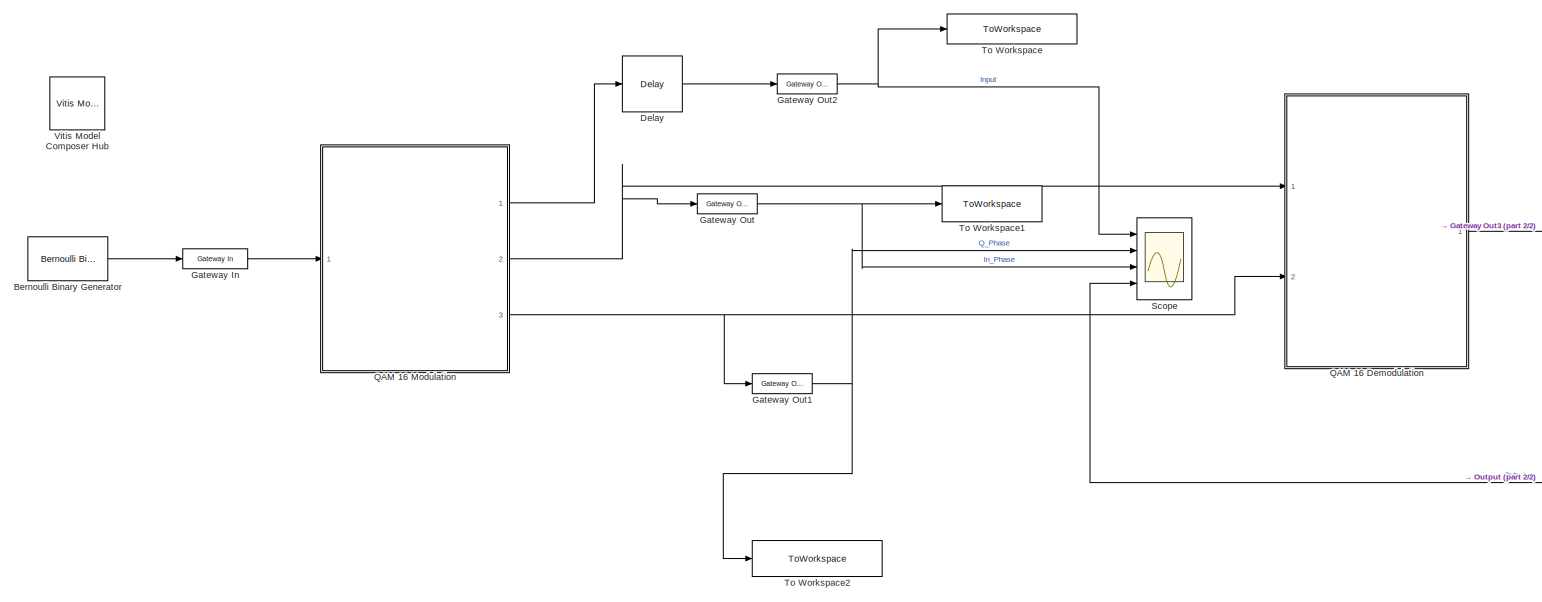
[diagram: root canvas - part 1/2, most of the canvas]
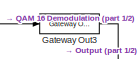
[diagram: root canvas - part 2/2, middle right region]
MODEL slx_ae24bdd93190
KIND model
CONFIG AbsTol = auto
CONFIG EnableMultiTasking = off
CONFIG FixedStep = auto
CONFIG MaxStep = auto
CONFIG MinStep = auto
CONFIG RelTol = 1e-3
CONFIG SampleTimeConstraint = Unconstrained
CONFIG SolverName = VariableStepAuto
CONFIG StartTime = 0.0
CONFIG StopTime = 1000
BLOCK [Reference] Bernoulli Binary Generator  REF=commrandsrc3/Bernoulli Binary
Generator
  Ports = [0, 1]
  SourceBlock = commrandsrc3/Bernoulli Binary\nGenerator
  SourceProductBaseCode = CM
  SourceType = Bernoulli Binary Generator
BLOCK [Reference] Delay  REF=hdlBasic/Delay
  Ports = [1, 1]
  SourceBlock = hdlBasic/Delay
  SourceType = Delay Block
BLOCK [Reference] Gateway In  REF=hdlBasic/Gateway In
  Ports = [1, 1]
  SourceBlock = hdlBasic/Gateway In
  SourceType = Gateway In Block
BLOCK [Reference] Gateway Out  REF=hdlBasic/Gateway Out
  Ports = [1, 1]
  SourceBlock = hdlBasic/Gateway Out
  SourceType = Gateway Out Block
BLOCK [Reference] Gateway Out1  REF=hdlBasic/Gateway Out
  Ports = [1, 1]
  SourceBlock = hdlBasic/Gateway Out
  SourceType = Gateway Out Block
BLOCK [Reference] Gateway Out2  REF=hdlBasic/Gateway Out
  Ports = [1, 1]
  SourceBlock = hdlBasic/Gateway Out
  SourceType = Gateway Out Block
BLOCK [Reference] Gateway Out3  REF=hdlBasic/Gateway Out
  Ports = [1, 1]
  SourceBlock = hdlBasic/Gateway Out
  SourceType = Gateway Out Block
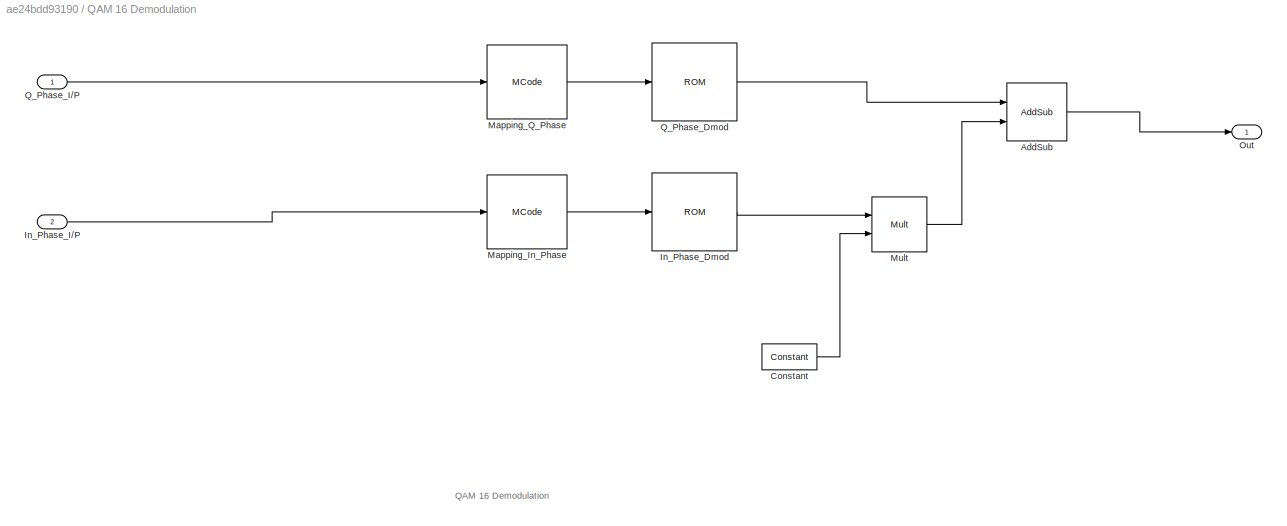
BLOCK [SubSystem] QAM 16 Demodulation
  Ports = [2, 1]
  RequestExecContextInheritance = off
BLOCK [Reference] QAM 16 Demodulation/AddSub  REF=hdlBasic/AddSub
  Ports = [2, 1]
  SourceBlock = hdlBasic/AddSub
  SourceType = Adder/Subtracter Block
BLOCK [Reference] QAM 16 Demodulation/Constant  REF=hdlBasic/Constant
  Ports = [0, 1]
  SourceBlock = hdlBasic/Constant
  SourceType = Constant Block Block
BLOCK [Reference] QAM 16 Demodulation/In_Phase_Dmod  REF=hdlBasic/ROM
  Ports = [1, 1]
  SourceBlock = hdlBasic/ROM
  SourceType = Single Port Read-Only Memory Block
BLOCK [Inport] QAM 16 Demodulation/In_Phase_I//P
  Port = 2
BLOCK [Reference] QAM 16 Demodulation/Mapping_In_Phase  REF=hdlBasic/MCode
  Ports = [1, 1]
  SourceBlock = hdlBasic/MCode
  SourceType = MCode
BLOCK [Reference] QAM 16 Demodulation/Mapping_Q_Phase  REF=hdlBasic/MCode
  Ports = [1, 1]
  SourceBlock = hdlBasic/MCode
  SourceType = MCode
BLOCK [Reference] QAM 16 Demodulation/Mult  REF=hdlBasic/Mult
  Ports = [2, 1]
  SourceBlock = hdlBasic/Mult
  SourceType = Multiplier Block
BLOCK [Outport] QAM 16 Demodulation/Out
BLOCK [Reference] QAM 16 Demodulation/Q_Phase_Dmod  REF=hdlBasic/ROM
  Ports = [1, 1]
  SourceBlock = hdlBasic/ROM
  SourceType = Single Port Read-Only Memory Block
BLOCK [Inport] QAM 16 Demodulation/Q_Phase_I//P
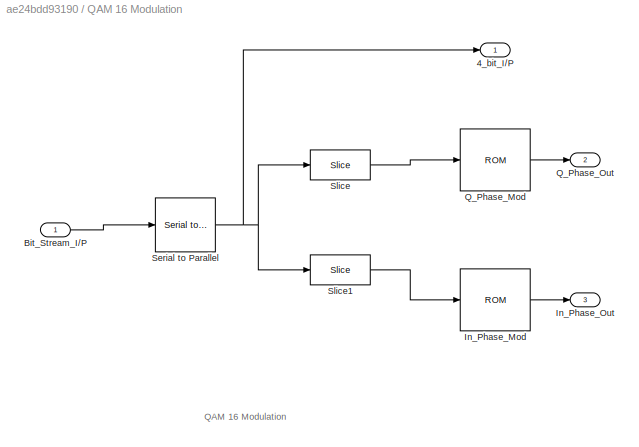
BLOCK [SubSystem] QAM 16 Modulation
  Ports = [1, 3]
  RequestExecContextInheritance = off
BLOCK [Outport] QAM 16 Modulation/4_bit_I//P
BLOCK [Inport] QAM 16 Modulation/Bit_Stream_I//P
BLOCK [Reference] QAM 16 Modulation/In_Phase_Mod  REF=hdlBasic/ROM
  Ports = [1, 1]
  SourceBlock = hdlBasic/ROM
  SourceType = Single Port Read-Only Memory Block
BLOCK [Outport] QAM 16 Modulation/In_Phase_Out
  Port = 3
BLOCK [Reference] QAM 16 Modulation/Q_Phase_Mod  REF=hdlBasic/ROM
  Ports = [1, 1]
  SourceBlock = hdlBasic/ROM
  SourceType = Single Port Read-Only Memory Block
BLOCK [Outport] QAM 16 Modulation/Q_Phase_Out
  Port = 2
BLOCK [Reference] QAM 16 Modulation/Serial to Parallel  REF=hdlBasic/Serial to Parallel
  Ports = [1, 1]
  SourceBlock = hdlBasic/Serial to Parallel
  SourceType = Serial to Parallel Converter Block
BLOCK [Reference] QAM 16 Modulation/Slice  REF=hdlBasic/Slice
  Ports = [1, 1]
  SourceBlock = hdlBasic/Slice
  SourceType = Bit Slice Extractor Block
BLOCK [Reference] QAM 16 Modulation/Slice1  REF=hdlBasic/Slice
  Ports = [1, 1]
  SourceBlock = hdlBasic/Slice
  SourceType = Bit Slice Extractor Block
BLOCK [Scope] Scope
  Floating = off
  NumInputPorts = 4
  Ports = [4]
  ScopeSpecificationString = Simulink.scopes.TimeScopeBlockCfg('CurrentConfiguration', extmgr.ConfigurationSet(extmgr.Configuration('Core','General UI',true),extmgr.Configuration('Core','Source UI',true),extmgr.Configuration('Sources','WiredSimulink',true),extmgr.Configuration('Visuals','Time Domain',true,'SerializedDisplays',{struct('MinYLimReal','-1.875','MaxYLimReal','16.875','YLabelReal','','MinYLimMag','0.00000','MaxYLim...<+3412ch>
BLOCK [ToWorkspace] To Workspace
  FixptAsFi = on
  MaxDataPoints = inf
  Ports = [1]
  SampleTime = -1
  SaveFormat = Timeseries
  VariableName = Input
BLOCK [ToWorkspace] To Workspace1
  FixptAsFi = on
  MaxDataPoints = inf
  Ports = [1]
  SampleTime = -1
  SaveFormat = Timeseries
  VariableName = Q_Phase
BLOCK [ToWorkspace] To Workspace2
  FixptAsFi = on
  MaxDataPoints = inf
  Ports = [1]
  SampleTime = -1
  SaveFormat = Timeseries
  VariableName = In_Phase
BLOCK [Reference] Vitis Model Composer Hub  REF=vmcUtilities/Vitis Model Composer Hub
  Ports = []
  SourceBlock = vmcUtilities/Vitis Model Composer Hub
  SourceType = Implementation
  Tag = genX
  UserDataPersistent = on
ANNOTATION QAM 16 Demodulation: QAM 16 Demodulation
ANNOTATION QAM 16 Modulation: QAM 16 Modulation
LINE Bernoulli Binary Generator:1 -> Gateway In:1
LINE Delay:1 -> Gateway Out2:1
LINE Gateway In:1 -> QAM 16 Modulation:1
NET Gateway Out1:1 -> Scope:2, To Workspace2:1
NET Gateway Out2:1 -> Scope:1, To Workspace:1
LINE Gateway Out3:1 -> Scope:4
NET Gateway Out:1 -> Scope:3, To Workspace1:1
LINE QAM 16 Demodulation/AddSub:1 -> QAM 16 Demodulation/Out:1
LINE QAM 16 Demodulation/Constant:1 -> QAM 16 Demodulation/Mult:2
LINE QAM 16 Demodulation/In_Phase_Dmod:1 -> QAM 16 Demodulation/Mult:1
LINE QAM 16 Demodulation/In_Phase_I//P:1 -> QAM 16 Demodulation/Mapping_In_Phase:1
LINE QAM 16 Demodulation/Mapping_In_Phase:1 -> QAM 16 Demodulation/In_Phase_Dmod:1
LINE QAM 16 Demodulation/Mapping_Q_Phase:1 -> QAM 16 Demodulation/Q_Phase_Dmod:1
LINE QAM 16 Demodulation/Mult:1 -> QAM 16 Demodulation/AddSub:2
LINE QAM 16 Demodulation/Q_Phase_Dmod:1 -> QAM 16 Demodulation/AddSub:1
LINE QAM 16 Demodulation/Q_Phase_I//P:1 -> QAM 16 Demodulation/Mapping_Q_Phase:1
LINE QAM 16 Demodulation:1 -> Gateway Out3:1
LINE QAM 16 Modulation/Bit_Stream_I//P:1 -> QAM 16 Modulation/Serial to Parallel:1
LINE QAM 16 Modulation/In_Phase_Mod:1 -> QAM 16 Modulation/In_Phase_Out:1
LINE QAM 16 Modulation/Q_Phase_Mod:1 -> QAM 16 Modulation/Q_Phase_Out:1
NET QAM 16 Modulation/Serial to Parallel:1 -> QAM 16 Modulation/4_bit_I//P:1, QAM 16 Modulation/Slice1:1, QAM 16 Modulation/Slice:1
LINE QAM 16 Modulation/Slice1:1 -> QAM 16 Modulation/In_Phase_Mod:1
LINE QAM 16 Modulation/Slice:1 -> QAM 16 Modulation/Q_Phase_Mod:1
LINE QAM 16 Modulation:1 -> Delay:1
NET QAM 16 Modulation:2 -> Gateway Out:1, QAM 16 Demodulation:1
NET QAM 16 Modulation:3 -> Gateway Out1:1, QAM 16 Demodulation:2
note: NET lines group one-source signal fan-out (src -> all destinations, sorted); 1:1 wires keep LINE
